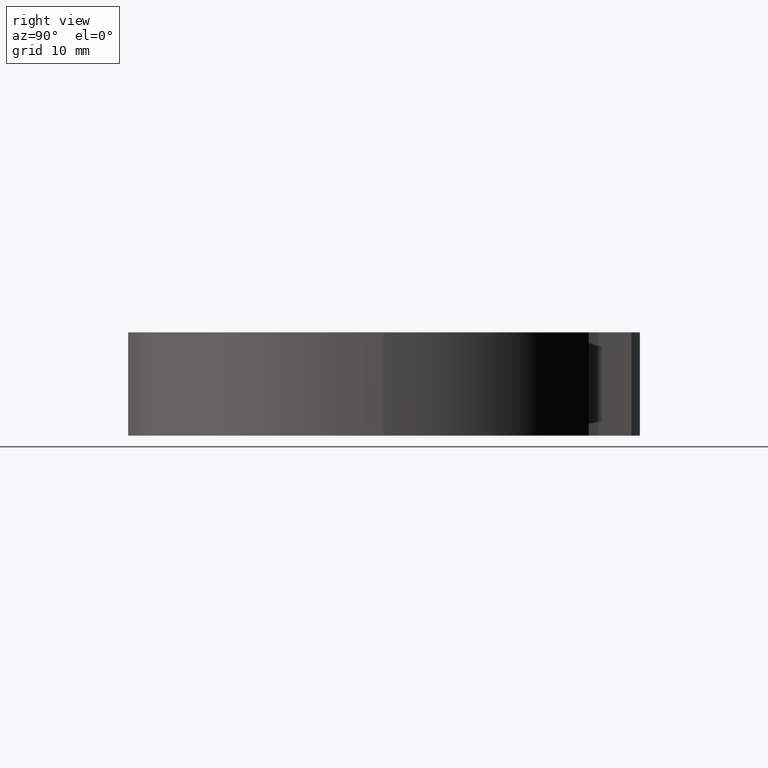
[diagram: clean part render]
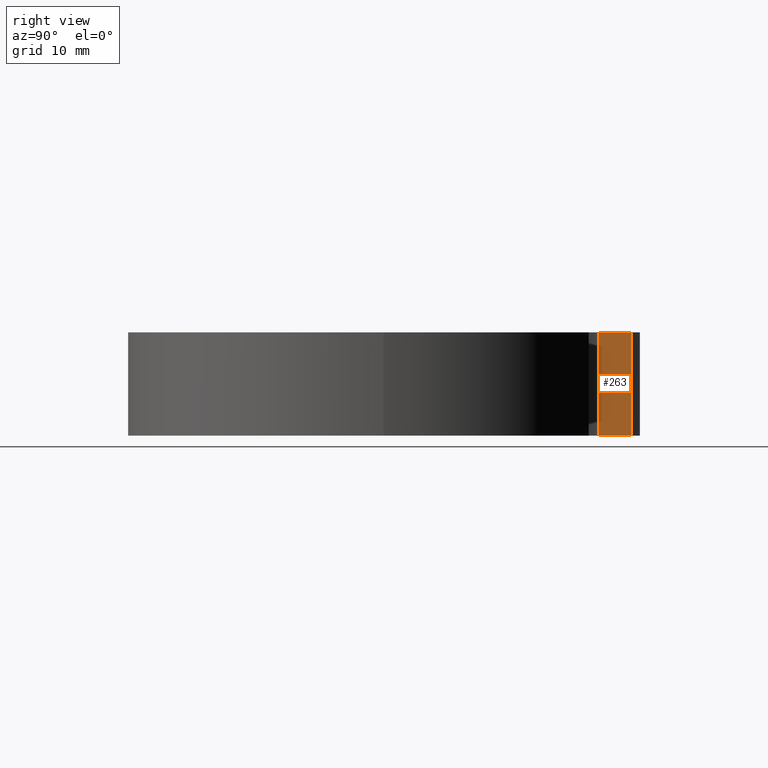
[diagram: same view with one face highlighted and labeled with its STEP entity id]
A machine part, right view. The second image highlights one B-rep face of the part: STEP entity #263.
In plain terms, the highlighted planar face has unit normal (-1, 0, 0).
Its self-contained STEP definition (entity closure, byte-faithful):
#2 = CARTESIAN_POINT ( 'NONE',  ( 7.500000000000000000, 25.00000000000000000, -6.000000000000000000 ) ) ;
#54 = DIRECTION ( 'NONE',  ( -0.0000000000000000000, -0.0000000000000000000, -1.000000000000000000 ) ) ;
#59 = DIRECTION ( 'NONE',  ( -0.0000000000000000000, -0.0000000000000000000, -1.000000000000000000 ) ) ;
#85 = VECTOR ( 'NONE', #285, 1000.000000000000000 ) ;
#88 = LINE ( 'NONE', #454, #85 ) ;
#91 = PLANE ( 'NONE',  #290 ) ;
#99 = EDGE_CURVE ( 'NONE', #324, #328, #226, .T. ) ;
#113 = ORIENTED_EDGE ( 'NONE', *, *, #426, .F. ) ;
#125 = VECTOR ( 'NONE', #54, 1000.000000000000000 ) ;
#126 = LINE ( 'NONE', #248, #158 ) ;
#127 = LINE ( 'NONE', #446, #125 ) ;
#158 = VECTOR ( 'NONE', #59, 1000.000000000000000 ) ;
#188 = FACE_OUTER_BOUND ( 'NONE', #322, .T. ) ;
#199 = CARTESIAN_POINT ( 'NONE',  ( 7.500000000000000000, 25.00000000000000000, 6.000000000000000000 ) ) ;
#218 = VECTOR ( 'NONE', #250, 1000.000000000000000 ) ;
#226 = LINE ( 'NONE', #2, #218 ) ;
#248 = CARTESIAN_POINT ( 'NONE',  ( 7.500000000000000000, 25.00000000000000000, 6.000000000000000000 ) ) ;
#250 = DIRECTION ( 'NONE',  ( 0.0000000000000000000, 1.000000000000000000, 0.0000000000000000000 ) ) ;
#255 = ORIENTED_EDGE ( 'NONE', *, *, #466, .F. ) ;
#263 = ADVANCED_FACE ( 'NONE', ( #188 ), #91, .F. ) ;
#264 = ORIENTED_EDGE ( 'NONE', *, *, #399, .T. ) ;
#267 = ORIENTED_EDGE ( 'NONE', *, *, #99, .T. ) ;
#285 = DIRECTION ( 'NONE',  ( 0.0000000000000000000, 1.000000000000000000, 0.0000000000000000000 ) ) ;
#290 = AXIS2_PLACEMENT_3D ( 'NONE', #438, #404, #339 ) ;
#294 = CARTESIAN_POINT ( 'NONE',  ( 7.500000000000000000, 25.00000000000000000, -6.000000000000000000 ) ) ;
#322 = EDGE_LOOP ( 'NONE', ( #267, #113, #255, #264 ) ) ;
#324 = VERTEX_POINT ( 'NONE', #294 ) ;
#328 = VERTEX_POINT ( 'NONE', #356 ) ;
#339 = DIRECTION ( 'NONE',  ( 0.0000000000000000000, 0.0000000000000000000, 1.000000000000000000 ) ) ;
#347 = VERTEX_POINT ( 'NONE', #199 ) ;
#356 = CARTESIAN_POINT ( 'NONE',  ( 7.500000000000000900, 28.78910384155782900, -6.000000000000000000 ) ) ;
#399 = EDGE_CURVE ( 'NONE', #347, #324, #126, .T. ) ;
#404 = DIRECTION ( 'NONE',  ( -1.000000000000000000, 0.0000000000000000000, 0.0000000000000000000 ) ) ;
#426 = EDGE_CURVE ( 'NONE', #435, #328, #127, .T. ) ;
#435 = VERTEX_POINT ( 'NONE', #439 ) ;
#438 = CARTESIAN_POINT ( 'NONE',  ( 7.500000000000000000, 25.00000000000000000, 6.000000000000000000 ) ) ;
#439 = CARTESIAN_POINT ( 'NONE',  ( 7.500000000000000900, 28.78910384155782900, 6.000000000000000000 ) ) ;
#446 = CARTESIAN_POINT ( 'NONE',  ( 7.500000000000000900, 28.78910384155782900, 6.000000000000000000 ) ) ;
#454 = CARTESIAN_POINT ( 'NONE',  ( 7.500000000000000000, 25.00000000000000000, 6.000000000000000000 ) ) ;
#466 = EDGE_CURVE ( 'NONE', #347, #435, #88, .T. ) ;